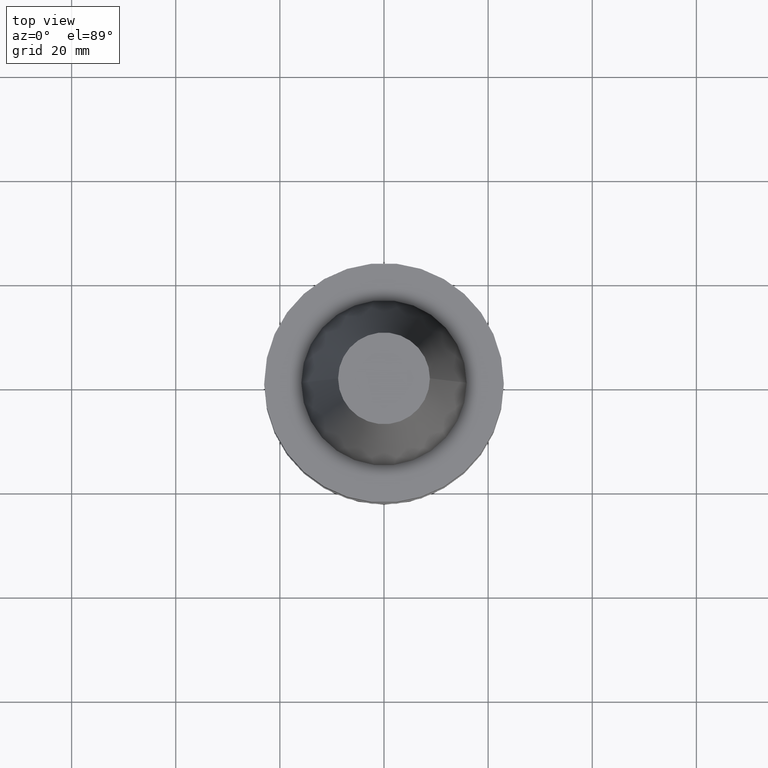
[diagram: clean part render]
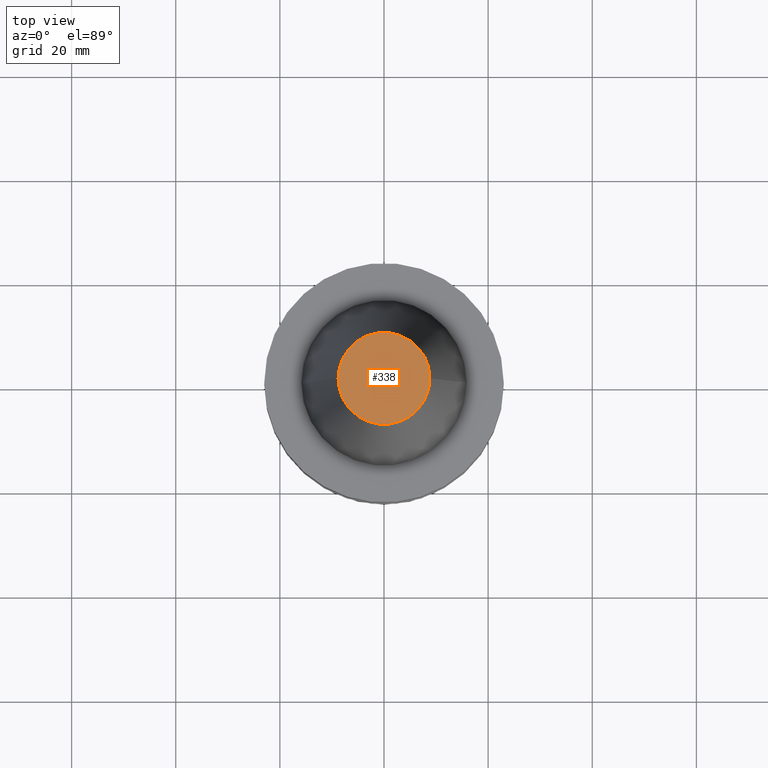
[diagram: same view with one face highlighted and labeled with its STEP entity id]
A machine part, top view. The second image highlights one B-rep face of the part: STEP entity #338.
In plain terms, the highlighted planar face has unit normal (0, 0, -1).
Its self-contained STEP definition (entity closure, byte-faithful):
#66 = CIRCLE ( 'NONE', #461, 8.816600212367498912 ) ;
#101 = ORIENTED_EDGE ( 'NONE', *, *, #630, .T. ) ;
#148 = DIRECTION ( 'NONE',  ( 0.000000000000000000, 0.000000000000000000, -1.000000000000000000 ) ) ;
#156 = CARTESIAN_POINT ( 'NONE',  ( 0.000000000000000000, 0.000000000000000000, 48.39999999999999858 ) ) ;
#168 = AXIS2_PLACEMENT_3D ( 'NONE', #685, #148, #384 ) ;
#261 = EDGE_CURVE ( 'NONE', #506, #682, #66, .T. ) ;
#271 = DIRECTION ( 'NONE',  ( -0.000000000000000000, -0.000000000000000000, 1.000000000000000000 ) ) ;
#273 = EDGE_LOOP ( 'NONE', ( #101, #761 ) ) ;
#338 = ADVANCED_FACE ( 'NONE', ( #456 ), #528, .F. ) ;
#370 = CARTESIAN_POINT ( 'NONE',  ( 8.816600212367498912, 1.511924458295098338E-15, 48.39999999999999858 ) ) ;
#384 = DIRECTION ( 'NONE',  ( -1.000000000000000000, 0.000000000000000000, -0.000000000000000000 ) ) ;
#456 = FACE_OUTER_BOUND ( 'NONE', #273, .T. ) ;
#461 = AXIS2_PLACEMENT_3D ( 'NONE', #156, #700, #637 ) ;
#506 = VERTEX_POINT ( 'NONE', #370 ) ;
#528 = PLANE ( 'NONE',  #168 ) ;
#540 = CARTESIAN_POINT ( 'NONE',  ( -8.816600212367498912, 0.000000000000000000, 48.39999999999999858 ) ) ;
#575 = CARTESIAN_POINT ( 'NONE',  ( 0.000000000000000000, 0.000000000000000000, 48.39999999999999858 ) ) ;
#630 = EDGE_CURVE ( 'NONE', #682, #506, #729, .T. ) ;
#637 = DIRECTION ( 'NONE',  ( 1.000000000000000000, 0.000000000000000000, 0.000000000000000000 ) ) ;
#682 = VERTEX_POINT ( 'NONE', #540 ) ;
#684 = DIRECTION ( 'NONE',  ( 1.000000000000000000, 0.000000000000000000, 0.000000000000000000 ) ) ;
#685 = CARTESIAN_POINT ( 'NONE',  ( 0.000000000000000000, 8.816600212367498912, 48.39999999999999147 ) ) ;
#700 = DIRECTION ( 'NONE',  ( -0.000000000000000000, -0.000000000000000000, 1.000000000000000000 ) ) ;
#729 = CIRCLE ( 'NONE', #742, 8.816600212367498912 ) ;
#742 = AXIS2_PLACEMENT_3D ( 'NONE', #575, #271, #684 ) ;
#761 = ORIENTED_EDGE ( 'NONE', *, *, #261, .T. ) ;